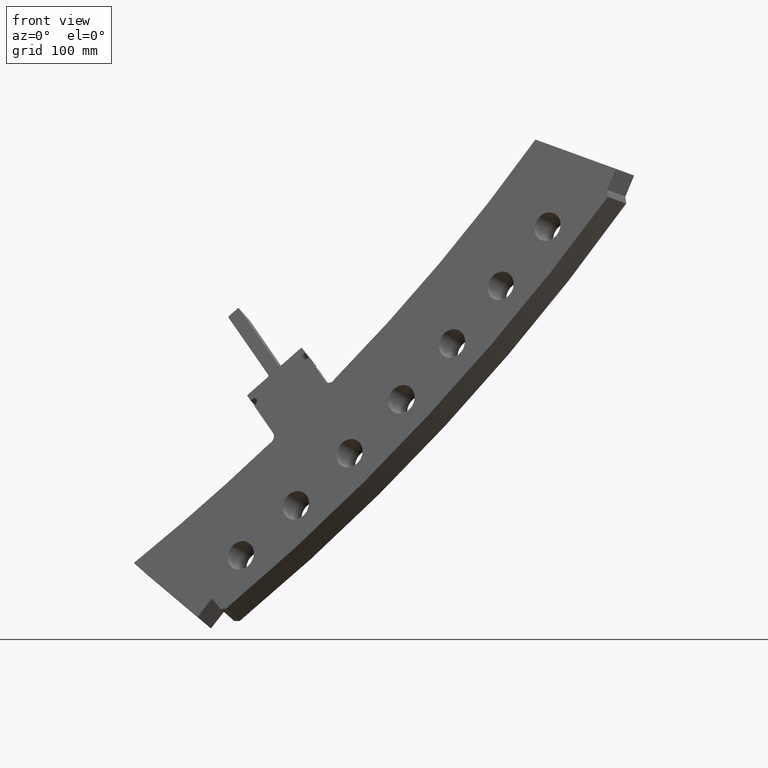
[diagram: clean part render]
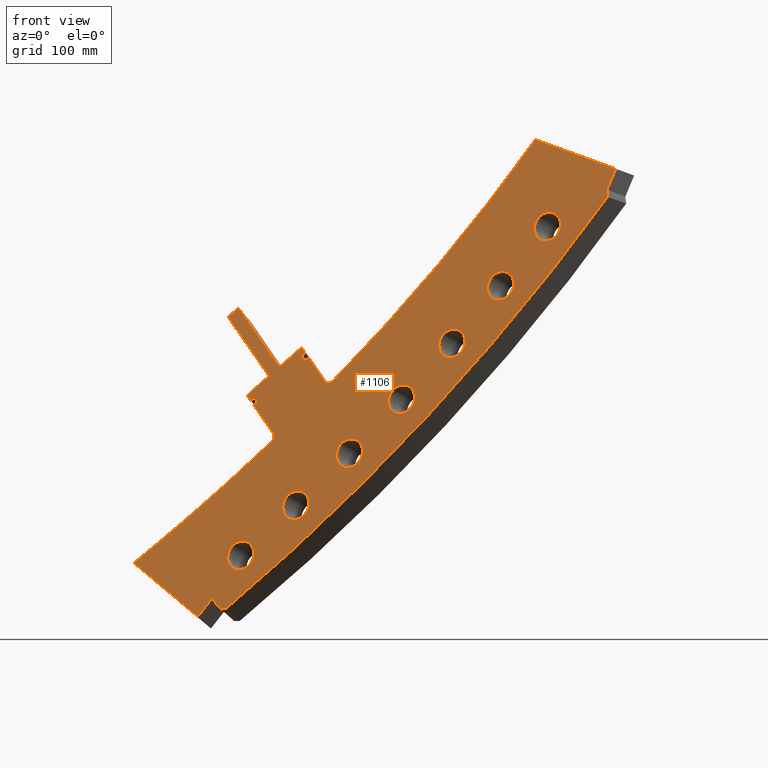
[diagram: same view with one face highlighted and labeled with its STEP entity id]
A machine part, front view. The second image highlights one B-rep face of the part: STEP entity #1106.
In plain terms, the highlighted planar face has unit normal (0.478, 0.8339, -0.276).
Its self-contained STEP definition (entity closure, byte-faithful):
#1=CARTESIAN_POINT('',(8.127558750762E1,-2.359378178252E1,-4.666729576118E1));
#2=DIRECTION('',(4.779914505684E-1,8.338858220672E-1,-2.759684926560E-1));
#3=DIRECTION('',(-7.019356772452E-1,1.737683261332E-1,-6.907176513187E-1));
#4=AXIS2_PLACEMENT_3D('',#1,#2,#3);
#6=CARTESIAN_POINT('',(8.127558750762E1,-2.359378178252E1,-4.666729576118E1));
#7=DIRECTION('',(4.779914505684E-1,8.338858220672E-1,-2.759684926560E-1));
#8=DIRECTION('',(7.019356772452E-1,-1.737683261332E-1,6.907176513187E-1));
#9=AXIS2_PLACEMENT_3D('',#6,#7,#8);
#11=CARTESIAN_POINT('',(7.843744196527E1,-2.294109803751E1,-4.961091289528E1));
#12=DIRECTION('',(4.779914505684E-1,8.338858220672E-1,-2.759684926560E-1));
#13=DIRECTION('',(-7.019356772452E-1,1.737683261332E-1,-6.907176513187E-1));
#14=AXIS2_PLACEMENT_3D('',#11,#12,#13);
#16=CARTESIAN_POINT('',(7.843744196527E1,-2.294109803751E1,-4.961091289528E1));
#17=DIRECTION('',(4.779914505684E-1,8.338858220672E-1,-2.759684926560E-1));
#18=DIRECTION('',(7.019356772452E-1,-1.737683261332E-1,6.907176513187E-1));
#19=AXIS2_PLACEMENT_3D('',#16,#17,#18);
#21=CARTESIAN_POINT('',(7.551388390553E1,-2.220462540024E1,-5.244928643458E1));
#22=DIRECTION('',(4.779914505684E-1,8.338858220672E-1,-2.759684926560E-1));
#23=DIRECTION('',(-7.019356772452E-1,1.737683261332E-1,-6.907176513187E-1));
#24=AXIS2_PLACEMENT_3D('',#21,#22,#23);
#26=CARTESIAN_POINT('',(7.551388390553E1,-2.220462540024E1,-5.244928643458E1));
#27=DIRECTION('',(4.779914505684E-1,8.338858220672E-1,-2.759684926560E-1));
#28=DIRECTION('',(7.019356772452E-1,-1.737683261332E-1,6.907176513187E-1));
#29=AXIS2_PLACEMENT_3D('',#26,#27,#28);
#31=CARTESIAN_POINT('',(7.250924293747E1,-2.138545454125E1,-5.517821292306E1));
#32=DIRECTION('',(4.779914505684E-1,8.338858220672E-1,-2.759684926560E-1));
#33=DIRECTION('',(-7.019356772452E-1,1.737683261332E-1,-6.907176513187E-1));
#34=AXIS2_PLACEMENT_3D('',#31,#32,#33);
#36=CARTESIAN_POINT('',(7.250924293747E1,-2.138545454125E1,-5.517821292306E1));
#37=DIRECTION('',(4.779914505684E-1,8.338858220672E-1,-2.759684926560E-1));
#38=DIRECTION('',(7.019356772452E-1,-1.737683261332E-1,6.907176513187E-1));
#39=AXIS2_PLACEMENT_3D('',#36,#37,#38);
#41=CARTESIAN_POINT('',(8.402411741419E1,-2.416171005093E1,-4.362279434760E1));
#42=DIRECTION('',(4.779914505684E-1,8.338858220672E-1,-2.759684926560E-1));
#43=DIRECTION('',(-7.019356772452E-1,1.737683261332E-1,-6.907176513187E-1));
#44=AXIS2_PLACEMENT_3D('',#41,#42,#43);
#46=CARTESIAN_POINT('',(8.402411741419E1,-2.416171005093E1,-4.362279434760E1));
#47=DIRECTION('',(4.779914505684E-1,8.338858220672E-1,-2.759684926560E-1));
#48=DIRECTION('',(7.019356772452E-1,-1.737683261332E-1,6.907176513187E-1));
#49=AXIS2_PLACEMENT_3D('',#46,#47,#48);
#51=CARTESIAN_POINT('',(8.667896128183E1,-2.464404177603E1,-4.048191737323E1));
#52=DIRECTION('',(4.779914505684E-1,8.338858220672E-1,-2.759684926560E-1));
#53=DIRECTION('',(-7.019356772452E-1,1.737683261332E-1,-6.907176513187E-1));
#54=AXIS2_PLACEMENT_3D('',#51,#52,#53);
#56=CARTESIAN_POINT('',(8.667896128183E1,-2.464404177603E1,-4.048191737323E1));
#57=DIRECTION('',(4.779914505684E-1,8.338858220672E-1,-2.759684926560E-1));
#58=DIRECTION('',(7.019356772452E-1,-1.737683261332E-1,6.907176513187E-1));
#59=AXIS2_PLACEMENT_3D('',#56,#57,#58);
#61=CARTESIAN_POINT('',(8.923618745062E1,-2.504006265430E1,-3.724931628303E1));
#62=DIRECTION('',(4.779914505684E-1,8.338858220672E-1,-2.759684926560E-1));
#63=DIRECTION('',(-7.019356772452E-1,1.737683261332E-1,-6.907176513187E-1));
#64=AXIS2_PLACEMENT_3D('',#61,#62,#63);
#66=CARTESIAN_POINT('',(8.923618745062E1,-2.504006265430E1,-3.724931628303E1));
#67=DIRECTION('',(4.779914505684E-1,8.338858220672E-1,-2.759684926560E-1));
#68=DIRECTION('',(7.019356772452E-1,-1.737683261332E-1,6.907176513187E-1));
#69=AXIS2_PLACEMENT_3D('',#66,#67,#68);
#71=CARTESIAN_POINT('',(7.426396497243E1,-2.018117767834E1,-4.850001747068E1));
#72=CARTESIAN_POINT('',(7.428116688443E1,-2.019926382544E1,-4.852487326020E1));
#73=CARTESIAN_POINT('',(7.430624649612E1,-2.023204191765E1,-4.858047868911E1));
#74=CARTESIAN_POINT('',(7.431985381070E1,-2.027313301015E1,-4.868107386631E1));
#75=CARTESIAN_POINT('',(7.430584599745E1,-2.030214373105E1,-4.879299694681E1));
#76=CARTESIAN_POINT('',(7.426421117853E1,-2.031394711324E1,-4.890077649896E1));
#77=CARTESIAN_POINT('',(7.419381269522E1,-2.030454052412E1,-4.899428663705E1));
#78=CARTESIAN_POINT('',(7.413189019313E1,-2.028463997730E1,-4.904140666379E1));
#79=CARTESIAN_POINT('',(7.409668651441E1,-2.027102156962E1,-4.906123088475E1));
#81=CARTESIAN_POINT('',(7.322662826487E1,-1.909071871240E1,-4.700172978686E1));
#82=CARTESIAN_POINT('',(7.333998205052E1,-1.920985426338E1,-4.716538363735E1));
#83=CARTESIAN_POINT('',(7.356795975812E1,-1.944947628392E1,-4.749457342839E1));
#84=CARTESIAN_POINT('',(7.391373803520E1,-1.981296243644E1,-4.799400322754E1));
#85=CARTESIAN_POINT('',(7.414679886133E1,-2.005798884215E1,-4.833071906968E1));
#86=CARTESIAN_POINT('',(7.426396497243E1,-2.018117767834E1,-4.850001747068E1));
#88=CARTESIAN_POINT('',(7.332671491990E1,-1.911902440292E1,-4.691390508201E1));
#89=CARTESIAN_POINT('',(7.331007460952E1,-1.911431846237E1,-4.692850714384E1));
#90=CARTESIAN_POINT('',(7.327675319055E1,-1.910489490735E1,-4.695774665734E1));
#91=CARTESIAN_POINT('',(7.324335017342E1,-1.909544800264E1,-4.698705694793E1));
#92=CARTESIAN_POINT('',(7.322662826487E1,-1.909071871240E1,-4.700172978686E1));
#94=CARTESIAN_POINT('',(7.314373635167E1,-1.892671666798E1,-4.664974267100E1));
#95=CARTESIAN_POINT('',(7.316191665020E1,-1.893185873867E1,-4.663379111298E1));
#96=CARTESIAN_POINT('',(7.320089902385E1,-1.894677658182E1,-4.661134846611E1));
#97=CARTESIAN_POINT('',(7.327089571046E1,-1.898333002909E1,-4.660056311769E1));
#98=CARTESIAN_POINT('',(7.333293832588E1,-1.902408211379E1,-4.661624152310E1));
#99=CARTESIAN_POINT('',(7.337844986463E1,-1.906226235772E1,-4.665278133812E1));
#100=CARTESIAN_POINT('',(7.340160525196E1,-1.909500679648E1,-4.671161793175E1));
#101=CARTESIAN_POINT('',(7.340039202589E1,-1.911924077189E1,-4.678694638678E1));
#102=CARTESIAN_POINT('',(7.337349854657E1,-1.912843197018E1,-4.686130003106E1));
#103=CARTESIAN_POINT('',(7.334468564249E1,-1.912410658890E1,-4.689813556832E1));
#104=CARTESIAN_POINT('',(7.332671491990E1,-1.911902440292E1,-4.691390508201E1));
#106=CARTESIAN_POINT('',(7.306621718274E1,-1.890479084907E1,-4.671775721244E1));
#107=CARTESIAN_POINT('',(7.307916175671E1,-1.890845222353E1,-4.670640001940E1));
#108=CARTESIAN_POINT('',(7.310502619190E1,-1.891576790084E1,-4.668370706905E1));
#109=CARTESIAN_POINT('',(7.313084120239E1,-1.892306943584E1,-4.666105699137E1));
#110=CARTESIAN_POINT('',(7.314373635167E1,-1.892671666798E1,-4.664974267100E1));
#112=CARTESIAN_POINT('',(7.302896235534E1,-1.888297858582E1,-4.671637499636E1));
#113=CARTESIAN_POINT('',(7.303517033241E1,-1.888661332189E1,-4.671660543899E1));
#114=CARTESIAN_POINT('',(7.304758744738E1,-1.889388343517E1,-4.671706625102E1));
#115=CARTESIAN_POINT('',(7.306000688401E1,-1.890115483073E1,-4.671752691642E1));
#116=CARTESIAN_POINT('',(7.306621718274E1,-1.890479084907E1,-4.671775721244E1));
#118=CARTESIAN_POINT('',(7.286258814938E1,-1.870813795394E1,-4.647623281433E1));
#119=CARTESIAN_POINT('',(7.289024448457E1,-1.873720065464E1,-4.651614853868E1));
#120=CARTESIAN_POINT('',(7.294562984907E1,-1.879540345925E1,-4.659608796453E1));
#121=CARTESIAN_POINT('',(7.300116061687E1,-1.885376107450E1,-4.667624333118E1));
#122=CARTESIAN_POINT('',(7.302896235534E1,-1.888297858582E1,-4.671637499636E1));
#124=CARTESIAN_POINT('',(7.287048476558E1,-1.869909736581E1,-4.643523779643E1));
#125=CARTESIAN_POINT('',(7.286916939144E1,-1.870060313326E1,-4.644206602417E1));
#126=CARTESIAN_POINT('',(7.286653791469E1,-1.870361566545E1,-4.645572675490E1));
#127=CARTESIAN_POINT('',(7.286390498072E1,-1.870663019206E1,-4.646939603611E1));
#128=CARTESIAN_POINT('',(7.286258814938E1,-1.870813795394E1,-4.647623281433E1));
#130=CARTESIAN_POINT('',(7.396782235400E1,-1.900942105620E1,-4.547228924593E1));
#131=CARTESIAN_POINT('',(7.384923316018E1,-1.897589525255E1,-4.557638782674E1));
#132=CARTESIAN_POINT('',(7.360983032252E1,-1.890820761664E1,-4.578651598003E1));
#133=CARTESIAN_POINT('',(7.324405167E1,-1.880476696027E1,-4.610749962235E1));
#134=CARTESIAN_POINT('',(7.299574890667E1,-1.873453295203E1,-4.632534860122E1));
#135=CARTESIAN_POINT('',(7.287048476558E1,-1.869909736581E1,-4.643523779643E1));
#137=CARTESIAN_POINT('',(7.399679862397E1,-1.897665077469E1,-4.532307988491E1));
#138=CARTESIAN_POINT('',(7.400360696534E1,-1.898380717230E1,-4.533291176648E1));
#139=CARTESIAN_POINT('',(7.401209553591E1,-1.899603175331E1,-4.535514778541E1));
#140=CARTESIAN_POINT('',(7.401160847569E1,-1.900996113227E1,-4.539808139034E1));
#141=CARTESIAN_POINT('',(7.399562704275E1,-1.901509373458E1,-4.544127107660E1));
#142=CARTESIAN_POINT('',(7.397850462813E1,-1.901244099262E1,-4.546291225683E1));
#143=CARTESIAN_POINT('',(7.396782235400E1,-1.900942105620E1,-4.547228924593E1));
#145=CARTESIAN_POINT('',(7.182785333719E1,-1.669804584982E1,-4.219461029477E1));
#146=CARTESIAN_POINT('',(7.206046464002E1,-1.694226685936E1,-4.252967109231E1));
#147=CARTESIAN_POINT('',(7.253126591042E1,-1.743667772503E1,-4.320816604364E1));
#148=CARTESIAN_POINT('',(7.325423423171E1,-1.819620900998E1,-4.425100137082E1));
#149=CARTESIAN_POINT('',(7.374740858372E1,-1.871451140917E1,-4.496293734740E1));
#150=CARTESIAN_POINT('',(7.399679862397E1,-1.897665077469E1,-4.532307988491E1));
#152=CARTESIAN_POINT('',(7.183584233481E1,-1.668903719362E1,-4.215355175533E1));
#153=CARTESIAN_POINT('',(7.183451163133E1,-1.669053747579E1,-4.216038995954E1));
#154=CARTESIAN_POINT('',(7.183184942844E1,-1.669353920076E1,-4.217407125368E1));
#155=CARTESIAN_POINT('',(7.182918563310E1,-1.669654324669E1,-4.218776231918E1));
#156=CARTESIAN_POINT('',(7.182785333719E1,-1.669804584982E1,-4.219461029477E1));
#158=CARTESIAN_POINT('',(7.235823644005E1,-1.683694989781E1,-4.169568206161E1));
#159=CARTESIAN_POINT('',(7.227242646040E1,-1.681265666243E1,-4.177090315621E1));
#160=CARTESIAN_POINT('',(7.209955089886E1,-1.676371141860E1,-4.192243601830E1));
#161=CARTESIAN_POINT('',(7.192416382809E1,-1.671404830424E1,-4.207614977387E1));
#162=CARTESIAN_POINT('',(7.183584233481E1,-1.668903719362E1,-4.215355175533E1));
#164=CARTESIAN_POINT('',(7.239566608505E1,-1.685881645134E1,-4.169692553204E1));
#165=CARTESIAN_POINT('',(7.238942722971E1,-1.685517173874E1,-4.169671842634E1));
#166=CARTESIAN_POINT('',(7.237695010019E1,-1.684788260054E1,-4.169630407554E1));
#167=CARTESIAN_POINT('',(7.236447413304E1,-1.684059403638E1,-4.169588944603E1));
#168=CARTESIAN_POINT('',(7.235823644005E1,-1.683694989781E1,-4.169568206161E1));
#170=CARTESIAN_POINT('',(7.456353184660E1,-1.913683966985E1,-4.482550718984E1));
#171=CARTESIAN_POINT('',(7.431462473358E1,-1.887514752704E1,-4.446587955743E1));
#172=CARTESIAN_POINT('',(7.382217510463E1,-1.835748475225E1,-4.375462105782E1));
#173=CARTESIAN_POINT('',(7.309956817461E1,-1.759814780116E1,-4.271174699546E1));
#174=CARTESIAN_POINT('',(7.262852198875E1,-1.710335585189E1,-4.203252474114E1));
#175=CARTESIAN_POINT('',(7.239566608505E1,-1.685881645134E1,-4.169692553204E1));
#177=CARTESIAN_POINT('',(7.469925760385E1,-1.921615563631E1,-4.483008998947E1));
#178=CARTESIAN_POINT('',(7.468825810116E1,-1.921304741575E1,-4.483974966897E1));
#179=CARTESIAN_POINT('',(7.466486171623E1,-1.920411983027E1,-4.485329717569E1));
#180=CARTESIAN_POINT('',(7.462378703606E1,-1.918273920354E1,-4.485983540202E1));
#181=CARTESIAN_POINT('',(7.458729766528E1,-1.915853174750E1,-4.484988989306E1));
#182=CARTESIAN_POINT('',(7.457029945898E1,-1.914395489836E1,-4.483528521663E1));
#183=CARTESIAN_POINT('',(7.456353184660E1,-1.913683966985E1,-4.482550718984E1));
#185=CARTESIAN_POINT('',(7.580278164771E1,-1.952787435437E1,-4.386064149764E1));
#186=CARTESIAN_POINT('',(7.568384401021E1,-1.949429020493E1,-4.396516729888E1));
#187=CARTESIAN_POINT('',(7.544351796902E1,-1.942642106050E1,-4.417634602867E1));
#188=CARTESIAN_POINT('',(7.507567679538E1,-1.932251499165E1,-4.449949573922E1));
#189=CARTESIAN_POINT('',(7.482554768584E1,-1.925184247054E1,-4.471918300119E1));
#190=CARTESIAN_POINT('',(7.469925760385E1,-1.921615563631E1,-4.483008998947E1));
#192=CARTESIAN_POINT('',(7.584021038857E1,-1.954971635622E1,-4.386181234698E1));
#193=CARTESIAN_POINT('',(7.583397454087E1,-1.954607739770E1,-4.386161741884E1));
#194=CARTESIAN_POINT('',(7.582150056970E1,-1.953879810556E1,-4.386122734919E1));
#195=CARTESIAN_POINT('',(7.580902204696E1,-1.953151606315E1,-4.386083685267E1));
#196=CARTESIAN_POINT('',(7.580278164771E1,-1.952787435437E1,-4.386064149764E1));
#198=CARTESIAN_POINT('',(7.600617019378E1,-1.972434216407E1,-4.410202316481E1));
#199=CARTESIAN_POINT('',(7.597845547924E1,-1.969517944726E1,-4.406190634068E1));
#200=CARTESIAN_POINT('',(7.592308080491E1,-1.963691243128E1,-4.398175437334E1));
#201=CARTESIAN_POINT('',(7.586781561689E1,-1.957876224418E1,-4.390176578851E1));
#202=CARTESIAN_POINT('',(7.584021038857E1,-1.954971635622E1,-4.386181234698E1));
#204=CARTESIAN_POINT('',(7.599803448479E1,-1.973331911294E1,-4.414324000668E1));
#205=CARTESIAN_POINT('',(7.599939133397E1,-1.973182164419E1,-4.413636501798E1));
#206=CARTESIAN_POINT('',(7.600210413450E1,-1.972882801721E1,-4.412262055562E1));
#207=CARTESIAN_POINT('',(7.600481513982E1,-1.972583701153E1,-4.410888712339E1));
#208=CARTESIAN_POINT('',(7.600617019378E1,-1.972434216407E1,-4.410202316481E1));
#210=CARTESIAN_POINT('',(7.591984328223E1,-1.971124300698E1,-4.421196442658E1));
#211=CARTESIAN_POINT('',(7.593290384990E1,-1.971493056742E1,-4.420048545199E1));
#212=CARTESIAN_POINT('',(7.595899628477E1,-1.972229747898E1,-4.417755240759E1));
#213=CARTESIAN_POINT('',(7.598503131840E1,-1.972964797153E1,-4.415466917224E1));
#214=CARTESIAN_POINT('',(7.599803448479E1,-1.973331911294E1,-4.414324000668E1));
#216=CARTESIAN_POINT('',(7.610240479733E1,-1.990333467212E1,-4.447619630309E1));
#217=CARTESIAN_POINT('',(7.608628992153E1,-1.989878535076E1,-4.449036153709E1));
#218=CARTESIAN_POINT('',(7.605169637525E1,-1.988594112801E1,-4.451146830933E1));
#219=CARTESIAN_POINT('',(7.599014110373E1,-1.985521885377E1,-4.452525258079E1));
#220=CARTESIAN_POINT('',(7.593184315615E1,-1.981926898533E1,-4.451759893510E1));
#221=CARTESIAN_POINT('',(7.588551781573E1,-1.978441160466E1,-4.449250926343E1));
#222=CARTESIAN_POINT('',(7.585469500094E1,-1.975288193535E1,-4.445062367662E1));
#223=CARTESIAN_POINT('',(7.584224547920E1,-1.972621972581E1,-4.439162247175E1));
#224=CARTESIAN_POINT('',(7.585014382567E1,-1.970788311239E1,-4.432253493262E1));
#225=CARTESIAN_POINT('',(7.587713343875E1,-1.970228813306E1,-4.425888136812E1));
#226=CARTESIAN_POINT('',(7.590377292945E1,-1.970670565465E1,-4.422608871091E1));
#227=CARTESIAN_POINT('',(7.591984328223E1,-1.971124300698E1,-4.421196442658E1));
#229=CARTESIAN_POINT('',(7.620335047534E1,-1.993183114175E1,-4.438746019840E1));
#230=CARTESIAN_POINT('',(7.618657358170E1,-1.992709528623E1,-4.440220843620E1));
#231=CARTESIAN_POINT('',(7.615297240807E1,-1.991761001877E1,-4.443174602432E1));
#232=CARTESIAN_POINT('',(7.611927646273E1,-1.990809763950E1,-4.446136583890E1));
#233=CARTESIAN_POINT('',(7.610240479733E1,-1.990333467212E1,-4.447619630309E1));
#235=CARTESIAN_POINT('',(7.707927071810E1,-2.085369455891E1,-4.565588922325E1));
#236=CARTESIAN_POINT('',(7.698096631477E1,-2.075022110437E1,-4.551349477099E1));
#237=CARTESIAN_POINT('',(7.678501119752E1,-2.054397043081E1,-4.522967743743E1));
#238=CARTESIAN_POINT('',(7.649303840671E1,-2.023668279598E1,-4.480686719901E1));
#239=CARTESIAN_POINT('',(7.629969564043E1,-2.003321639715E1,-4.452693830134E1));
#240=CARTESIAN_POINT('',(7.620335047534E1,-1.993183114175E1,-4.438746019840E1));
#242=CARTESIAN_POINT('',(7.763834362520E1,-2.113849743220E1,-4.554812695146E1));
#243=CARTESIAN_POINT('',(7.761678436981E1,-2.113871239995E1,-4.558611823884E1));
#244=CARTESIAN_POINT('',(7.756700214980E1,-2.113227747068E1,-4.565289933801E1));
#245=CARTESIAN_POINT('',(7.746927593848E1,-2.110210535153E1,-4.573099590229E1));
#246=CARTESIAN_POINT('',(7.735548398776E1,-2.104952033390E1,-4.576919475184E1));
#247=CARTESIAN_POINT('',(7.724131547896E1,-2.098315436278E1,-4.576640432005E1));
#248=CARTESIAN_POINT('',(7.714559226436E1,-2.091553784255E1,-4.572788695435E1));
#249=CARTESIAN_POINT('',(7.709843246169E1,-2.087386386706E1,-4.568364511099E1));
#250=CARTESIAN_POINT('',(7.707927071810E1,-2.085369455891E1,-4.565588922325E1));
#252=CARTESIAN_POINT('',(2.602018066017E1,2.898041905185E1,1.648943797964E1));
#253=DIRECTION('',(-4.779914505684E-1,-8.338858220672E-1,2.759684926560E-1));
#254=DIRECTION('',(5.433490838424E-1,-5.275675419374E-1,-6.530269992748E-1));
#255=AXIS2_PLACEMENT_3D('',#252,#253,#254);
#257=DIRECTION('',(7.872613042947E-1,-5.460572021249E-1,-2.864282995232E-1));
#258=VECTOR('',#257,5.570960509643E0);
#259=CARTESIAN_POINT('',(8.857770471982E1,-2.309129389212E1,-3.250130496847E1));
#260=LINE('',#259,#258);
#261=DIRECTION('',(-3.894295751228E-1,-8.042776296287E-2,-9.175379997387E-1));
#262=VECTOR('',#261,1.245047790247E0);
#263=CARTESIAN_POINT('',(9.296350635682E1,-2.613335700117E1,-3.409698571396E1));
#264=LINE('',#263,#262);
#265=DIRECTION('',(1.027115952828E-1,-3.650926340621E-1,-9.252878993849E-1));
#266=VECTOR('',#265,4.190047732425E-1);
#267=CARTESIAN_POINT('',(9.247864792485E1,-2.623349340972E1,-3.523936437300E1));
#268=LINE('',#267,#266);
#269=CARTESIAN_POINT('',(2.058371674080E1,3.385014392128E1,2.178790968969E1));
#270=DIRECTION('',(4.779914505684E-1,8.338858220672E-1,-2.759684926560E-1));
#271=DIRECTION('',(6.539815257522E-1,-5.476055717032E-1,-5.219543100832E-1));
#272=AXIS2_PLACEMENT_3D('',#269,#270,#271);
#274=DIRECTION('',(-8.723175326749E-1,4.874657680870E-1,-3.793741070928E-2));
#275=VECTOR('',#274,3.373796081569E-1);
#276=CARTESIAN_POINT('',(7.170366042272E1,-2.188665835778E1,-5.808799549868E1));
#277=LINE('',#276,#275);
#278=DIRECTION('',(-5.478568091090E-1,5.286183536179E-1,6.483945966240E-1));
#279=VECTOR('',#278,8.753570700006E-1);
#280=CARTESIAN_POINT('',(7.140935827536E1,-2.172219734795E1,-5.810079480744E1));
#281=LINE('',#280,#279);
#282=DIRECTION('',(-6.049124475003E-1,8.470999172234E-2,-7.917734197115E-1));
#283=VECTOR('',#282,1.257324142773E0);
#284=CARTESIAN_POINT('',(7.092978794416E1,-2.125946753478E1,-5.753321801314E1));
#285=LINE('',#284,#283);
#286=DIRECTION('',(-6.412999194699E-1,5.460055444919E-1,5.390847416428E-1));
#287=VECTOR('',#286,5.443771119362E0);
#288=CARTESIAN_POINT('',(7.016921691965E1,-2.115295961706E1,-5.852873384935E1));
#289=LINE('',#288,#287);
#290=CARTESIAN_POINT('',(1.741432926344E1,3.700090175484E1,2.581892119302E1));
#291=DIRECTION('',(-4.779914505684E-1,-8.338858220672E-1,2.759684926560E-1));
#292=DIRECTION('',(4.478527061432E-1,-5.016502923434E-1,-7.401181917721E-1));
#293=AXIS2_PLACEMENT_3D('',#290,#291,#292);
#843=CARTESIAN_POINT('',(7.016921691965E1,-2.115295961706E1,-5.852873384935E1));
#844=CARTESIAN_POINT('',(6.667812693919E1,-1.818063040294E1,-5.559407990190E1));
#845=VERTEX_POINT('',#843);
#846=VERTEX_POINT('',#844);
#847=CARTESIAN_POINT('',(8.857770471982E1,-2.309129389212E1,-3.250130496847E1));
#848=CARTESIAN_POINT('',(9.296350635682E1,-2.613335700117E1,-3.409698571396E1));
#849=VERTEX_POINT('',#847);
#850=VERTEX_POINT('',#848);
#859=CARTESIAN_POINT('',(8.070526476986E1,-2.345259501754E1,-4.722850385288E1));
#860=CARTESIAN_POINT('',(8.184591024538E1,-2.373496854751E1,-4.610608766949E1));
#861=VERTEX_POINT('',#859);
#862=VERTEX_POINT('',#860);
#863=CARTESIAN_POINT('',(7.786711922751E1,-2.279991127253E1,-5.017212098698E1));
#864=CARTESIAN_POINT('',(7.900776470303E1,-2.308228480249E1,-4.904970480358E1));
#865=VERTEX_POINT('',#863);
#866=VERTEX_POINT('',#864);
#867=CARTESIAN_POINT('',(7.494356116777E1,-2.206343863526E1,-5.301049452628E1));
#868=CARTESIAN_POINT('',(7.608420664330E1,-2.234581216523E1,-5.188807834289E1));
#869=VERTEX_POINT('',#867);
#870=VERTEX_POINT('',#868);
#871=CARTESIAN_POINT('',(7.193892019971E1,-2.124426777626E1,-5.573942101476E1));
#872=CARTESIAN_POINT('',(7.307956567523E1,-2.152664130623E1,-5.461700483136E1));
#873=VERTEX_POINT('',#871);
#874=VERTEX_POINT('',#872);
#875=CARTESIAN_POINT('',(8.345379467643E1,-2.402052328595E1,-4.418400243930E1));
#876=CARTESIAN_POINT('',(8.459444015196E1,-2.430289681592E1,-4.306158625590E1));
#877=VERTEX_POINT('',#875);
#878=VERTEX_POINT('',#876);
#879=CARTESIAN_POINT('',(8.610863854407E1,-2.450285501105E1,-4.104312546493E1));
#880=CARTESIAN_POINT('',(8.724928401960E1,-2.478522854101E1,-3.992070928153E1));
#881=VERTEX_POINT('',#879);
#882=VERTEX_POINT('',#880);
#883=CARTESIAN_POINT('',(8.866586471286E1,-2.489887588931E1,-3.781052437472E1));
#884=CARTESIAN_POINT('',(8.980651018838E1,-2.518124941928E1,-3.668810819133E1));
#885=VERTEX_POINT('',#883);
#886=VERTEX_POINT('',#884);
#915=CARTESIAN_POINT('',(9.252168457354E1,-2.638646896607E1,-3.562706441946E1));
#916=CARTESIAN_POINT('',(7.170366042272E1,-2.188665835778E1,-5.808799549868E1));
#917=VERTEX_POINT('',#915);
#918=VERTEX_POINT('',#916);
#923=CARTESIAN_POINT('',(9.247864792485E1,-2.623349340972E1,-3.523936437300E1));
#924=VERTEX_POINT('',#923);
#927=CARTESIAN_POINT('',(7.092978794416E1,-2.125946753478E1,-5.753321801314E1));
#928=VERTEX_POINT('',#927);
#931=CARTESIAN_POINT('',(7.140935827536E1,-2.172219734795E1,-5.810079480744E1));
#932=VERTEX_POINT('',#931);
#935=VERTEX_POINT('',#71);
#936=VERTEX_POINT('',#79);
#937=VERTEX_POINT('',#81);
#938=VERTEX_POINT('',#88);
#939=VERTEX_POINT('',#94);
#940=VERTEX_POINT('',#106);
#941=VERTEX_POINT('',#112);
#942=VERTEX_POINT('',#118);
#943=VERTEX_POINT('',#124);
#944=VERTEX_POINT('',#130);
#945=VERTEX_POINT('',#137);
#946=VERTEX_POINT('',#145);
#947=VERTEX_POINT('',#152);
#948=VERTEX_POINT('',#158);
#949=VERTEX_POINT('',#164);
#950=VERTEX_POINT('',#170);
#951=VERTEX_POINT('',#177);
#952=VERTEX_POINT('',#185);
#953=VERTEX_POINT('',#192);
#954=VERTEX_POINT('',#198);
#955=VERTEX_POINT('',#204);
#956=VERTEX_POINT('',#210);
#957=VERTEX_POINT('',#216);
#958=VERTEX_POINT('',#229);
#959=VERTEX_POINT('',#235);
#960=VERTEX_POINT('',#242);
#987=CARTESIAN_POINT('',(8.127558750762E1,-2.359378178252E1,-4.666729576118E1));
#988=DIRECTION('',(4.779914505684E-1,8.338858220672E-1,-2.759684926560E-1));
#989=DIRECTION('',(-7.019356772452E-1,1.737683261332E-1,-6.907176513187E-1));
#990=AXIS2_PLACEMENT_3D('',#987,#988,#989);
#991=PLANE('',#990);
#993=ORIENTED_EDGE('',*,*,#992,.F.);
#995=ORIENTED_EDGE('',*,*,#994,.F.);
#997=ORIENTED_EDGE('',*,*,#996,.F.);
#999=ORIENTED_EDGE('',*,*,#998,.F.);
#1001=ORIENTED_EDGE('',*,*,#1000,.F.);
#1003=ORIENTED_EDGE('',*,*,#1002,.F.);
#1005=ORIENTED_EDGE('',*,*,#1004,.F.);
#1007=ORIENTED_EDGE('',*,*,#1006,.F.);
#1009=ORIENTED_EDGE('',*,*,#1008,.F.);
#1011=ORIENTED_EDGE('',*,*,#1010,.F.);
#1013=ORIENTED_EDGE('',*,*,#1012,.F.);
#1015=ORIENTED_EDGE('',*,*,#1014,.F.);
#1017=ORIENTED_EDGE('',*,*,#1016,.F.);
#1019=ORIENTED_EDGE('',*,*,#1018,.F.);
#1021=ORIENTED_EDGE('',*,*,#1020,.F.);
#1023=ORIENTED_EDGE('',*,*,#1022,.F.);
#1025=ORIENTED_EDGE('',*,*,#1024,.F.);
#1027=ORIENTED_EDGE('',*,*,#1026,.F.);
#1029=ORIENTED_EDGE('',*,*,#1028,.F.);
#1031=ORIENTED_EDGE('',*,*,#1030,.F.);
#1033=ORIENTED_EDGE('',*,*,#1032,.F.);
#1035=ORIENTED_EDGE('',*,*,#1034,.F.);
#1037=ORIENTED_EDGE('',*,*,#1036,.F.);
#1039=ORIENTED_EDGE('',*,*,#1038,.F.);
#1041=ORIENTED_EDGE('',*,*,#1040,.F.);
#1043=ORIENTED_EDGE('',*,*,#1042,.T.);
#1045=ORIENTED_EDGE('',*,*,#1044,.T.);
#1047=ORIENTED_EDGE('',*,*,#1046,.T.);
#1049=ORIENTED_EDGE('',*,*,#1048,.T.);
#1051=ORIENTED_EDGE('',*,*,#1050,.T.);
#1053=ORIENTED_EDGE('',*,*,#1052,.T.);
#1055=ORIENTED_EDGE('',*,*,#1054,.T.);
#1057=ORIENTED_EDGE('',*,*,#1056,.T.);
#1059=ORIENTED_EDGE('',*,*,#1058,.T.);
#1061=ORIENTED_EDGE('',*,*,#1060,.T.);
#1062=EDGE_LOOP('',(#993,#995,#997,#999,#1001,#1003,#1005,#1007,#1009,#1011,
#1013,#1015,#1017,#1019,#1021,#1023,#1025,#1027,#1029,#1031,#1033,#1035,#1037,
#1039,#1041,#1043,#1045,#1047,#1049,#1051,#1053,#1055,#1057,#1059,#1061));
#1063=FACE_OUTER_BOUND('',#1062,.F.);
#1065=ORIENTED_EDGE('',*,*,#1064,.F.);
#1067=ORIENTED_EDGE('',*,*,#1066,.F.);
#1068=EDGE_LOOP('',(#1065,#1067));
#1069=FACE_BOUND('',#1068,.F.);
#1071=ORIENTED_EDGE('',*,*,#1070,.F.);
#1073=ORIENTED_EDGE('',*,*,#1072,.F.);
#1074=EDGE_LOOP('',(#1071,#1073));
#1075=FACE_BOUND('',#1074,.F.);
#1077=ORIENTED_EDGE('',*,*,#1076,.F.);
#1079=ORIENTED_EDGE('',*,*,#1078,.F.);
#1080=EDGE_LOOP('',(#1077,#1079));
#1081=FACE_BOUND('',#1080,.F.);
#1083=ORIENTED_EDGE('',*,*,#1082,.F.);
#1085=ORIENTED_EDGE('',*,*,#1084,.F.);
#1086=EDGE_LOOP('',(#1083,#1085));
#1087=FACE_BOUND('',#1086,.F.);
#1089=ORIENTED_EDGE('',*,*,#1088,.F.);
#1091=ORIENTED_EDGE('',*,*,#1090,.F.);
#1092=EDGE_LOOP('',(#1089,#1091));
#1093=FACE_BOUND('',#1092,.F.);
#1095=ORIENTED_EDGE('',*,*,#1094,.F.);
#1097=ORIENTED_EDGE('',*,*,#1096,.F.);
#1098=EDGE_LOOP('',(#1095,#1097));
#1099=FACE_BOUND('',#1098,.F.);
#1101=ORIENTED_EDGE('',*,*,#1100,.F.);
#1103=ORIENTED_EDGE('',*,*,#1102,.F.);
#1104=EDGE_LOOP('',(#1101,#1103));
#1105=FACE_BOUND('',#1104,.F.);
#1106=ADVANCED_FACE('',(#1063,#1069,#1075,#1081,#1087,#1093,#1099,#1105),#991,
.F.);
#5=CIRCLE('',#4,8.125E-1);
#10=CIRCLE('',#9,8.125E-1);
#15=CIRCLE('',#14,8.125E-1);
#20=CIRCLE('',#19,8.125E-1);
#25=CIRCLE('',#24,8.125E-1);
#30=CIRCLE('',#29,8.125E-1);
#35=CIRCLE('',#34,8.125E-1);
#40=CIRCLE('',#39,8.125E-1);
#45=CIRCLE('',#44,8.125E-1);
#50=CIRCLE('',#49,8.125E-1);
#55=CIRCLE('',#54,8.125E-1);
#60=CIRCLE('',#59,8.125E-1);
#65=CIRCLE('',#64,8.125E-1);
#70=CIRCLE('',#69,8.125E-1);
#80=B_SPLINE_CURVE_WITH_KNOTS('',3,(#71,#72,#73,#74,#75,#76,#77,#78,#79),
.UNSPECIFIED.,.F.,.F.,(4,1,1,1,1,1,4),(0.E0,1.666666666667E-1,3.333333333333E-1,
5.E-1,6.666666666667E-1,8.333333333333E-1,1.E0),.UNSPECIFIED.);
#87=B_SPLINE_CURVE_WITH_KNOTS('',3,(#81,#82,#83,#84,#85,#86),.UNSPECIFIED.,.F.,
.F.,(4,1,1,4),(0.E0,3.333333333333E-1,6.666666666667E-1,1.E0),.UNSPECIFIED.);
#93=B_SPLINE_CURVE_WITH_KNOTS('',3,(#88,#89,#90,#91,#92),.UNSPECIFIED.,.F.,.F.,(
4,1,4),(0.E0,5.E-1,1.E0),.UNSPECIFIED.);
#105=B_SPLINE_CURVE_WITH_KNOTS('',3,(#94,#95,#96,#97,#98,#99,#100,#101,#102,
#103,#104),.UNSPECIFIED.,.F.,.F.,(4,1,1,1,1,1,1,1,4),(0.E0,1.25E-1,2.5E-1,
3.75E-1,5.E-1,6.25E-1,7.5E-1,8.75E-1,1.E0),.UNSPECIFIED.);
#111=B_SPLINE_CURVE_WITH_KNOTS('',3,(#106,#107,#108,#109,#110),.UNSPECIFIED.,
.F.,.F.,(4,1,4),(0.E0,5.E-1,1.E0),.UNSPECIFIED.);
#117=B_SPLINE_CURVE_WITH_KNOTS('',3,(#112,#113,#114,#115,#116),.UNSPECIFIED.,
.F.,.F.,(4,1,4),(0.E0,5.E-1,1.E0),.UNSPECIFIED.);
#123=B_SPLINE_CURVE_WITH_KNOTS('',3,(#118,#119,#120,#121,#122),.UNSPECIFIED.,
.F.,.F.,(4,1,4),(0.E0,5.E-1,1.E0),.UNSPECIFIED.);
#129=B_SPLINE_CURVE_WITH_KNOTS('',3,(#124,#125,#126,#127,#128),.UNSPECIFIED.,
.F.,.F.,(4,1,4),(0.E0,5.E-1,1.E0),.UNSPECIFIED.);
#136=B_SPLINE_CURVE_WITH_KNOTS('',3,(#130,#131,#132,#133,#134,#135),
.UNSPECIFIED.,.F.,.F.,(4,1,1,4),(0.E0,3.333333333333E-1,6.666666666667E-1,1.E0),
.UNSPECIFIED.);
#144=B_SPLINE_CURVE_WITH_KNOTS('',3,(#137,#138,#139,#140,#141,#142,#143),
.UNSPECIFIED.,.F.,.F.,(4,1,1,1,4),(0.E0,2.5E-1,5.E-1,7.5E-1,1.E0),
.UNSPECIFIED.);
#151=B_SPLINE_CURVE_WITH_KNOTS('',3,(#145,#146,#147,#148,#149,#150),
.UNSPECIFIED.,.F.,.F.,(4,1,1,4),(0.E0,3.333333333333E-1,6.666666666667E-1,1.E0),
.UNSPECIFIED.);
#157=B_SPLINE_CURVE_WITH_KNOTS('',3,(#152,#153,#154,#155,#156),.UNSPECIFIED.,
.F.,.F.,(4,1,4),(0.E0,5.E-1,1.E0),.UNSPECIFIED.);
#163=B_SPLINE_CURVE_WITH_KNOTS('',3,(#158,#159,#160,#161,#162),.UNSPECIFIED.,
.F.,.F.,(4,1,4),(0.E0,5.E-1,1.E0),.UNSPECIFIED.);
#169=B_SPLINE_CURVE_WITH_KNOTS('',3,(#164,#165,#166,#167,#168),.UNSPECIFIED.,
.F.,.F.,(4,1,4),(0.E0,5.E-1,1.E0),.UNSPECIFIED.);
#176=B_SPLINE_CURVE_WITH_KNOTS('',3,(#170,#171,#172,#173,#174,#175),
.UNSPECIFIED.,.F.,.F.,(4,1,1,4),(0.E0,3.333333333333E-1,6.666666666667E-1,1.E0),
.UNSPECIFIED.);
#184=B_SPLINE_CURVE_WITH_KNOTS('',3,(#177,#178,#179,#180,#181,#182,#183),
.UNSPECIFIED.,.F.,.F.,(4,1,1,1,4),(0.E0,2.5E-1,5.E-1,7.5E-1,1.E0),
.UNSPECIFIED.);
#191=B_SPLINE_CURVE_WITH_KNOTS('',3,(#185,#186,#187,#188,#189,#190),
.UNSPECIFIED.,.F.,.F.,(4,1,1,4),(0.E0,3.333333333333E-1,6.666666666667E-1,1.E0),
.UNSPECIFIED.);
#197=B_SPLINE_CURVE_WITH_KNOTS('',3,(#192,#193,#194,#195,#196),.UNSPECIFIED.,
.F.,.F.,(4,1,4),(0.E0,5.E-1,1.E0),.UNSPECIFIED.);
#203=B_SPLINE_CURVE_WITH_KNOTS('',3,(#198,#199,#200,#201,#202),.UNSPECIFIED.,
.F.,.F.,(4,1,4),(0.E0,5.E-1,1.E0),.UNSPECIFIED.);
#209=B_SPLINE_CURVE_WITH_KNOTS('',3,(#204,#205,#206,#207,#208),.UNSPECIFIED.,
.F.,.F.,(4,1,4),(0.E0,5.E-1,1.E0),.UNSPECIFIED.);
#215=B_SPLINE_CURVE_WITH_KNOTS('',3,(#210,#211,#212,#213,#214),.UNSPECIFIED.,
.F.,.F.,(4,1,4),(0.E0,5.E-1,1.E0),.UNSPECIFIED.);
#228=B_SPLINE_CURVE_WITH_KNOTS('',3,(#216,#217,#218,#219,#220,#221,#222,#223,
#224,#225,#226,#227),.UNSPECIFIED.,.F.,.F.,(4,1,1,1,1,1,1,1,1,4),(0.E0,
1.111111111111E-1,2.222222222222E-1,3.333333333333E-1,4.444444444444E-1,
5.555555555556E-1,6.666666666667E-1,7.777777777778E-1,8.888888888889E-1,1.E0),
.UNSPECIFIED.);
#234=B_SPLINE_CURVE_WITH_KNOTS('',3,(#229,#230,#231,#232,#233),.UNSPECIFIED.,
.F.,.F.,(4,1,4),(0.E0,5.E-1,1.E0),.UNSPECIFIED.);
#241=B_SPLINE_CURVE_WITH_KNOTS('',3,(#235,#236,#237,#238,#239,#240),
.UNSPECIFIED.,.F.,.F.,(4,1,1,4),(0.E0,3.333333333333E-1,6.666666666667E-1,1.E0),
.UNSPECIFIED.);
#251=B_SPLINE_CURVE_WITH_KNOTS('',3,(#242,#243,#244,#245,#246,#247,#248,#249,
#250),.UNSPECIFIED.,.F.,.F.,(4,1,1,1,1,1,4),(0.E0,1.666666666667E-1,
3.333333333333E-1,5.E-1,6.666666666667E-1,8.333333333333E-1,1.E0),
.UNSPECIFIED.);
#256=CIRCLE('',#255,9.5E1);
#273=CIRCLE('',#272,1.1E2);
#294=CIRCLE('',#293,1.1E2);
#992=EDGE_CURVE('',#935,#936,#80,.T.);
#994=EDGE_CURVE('',#937,#935,#87,.T.);
#996=EDGE_CURVE('',#938,#937,#93,.T.);
#998=EDGE_CURVE('',#939,#938,#105,.T.);
#1000=EDGE_CURVE('',#940,#939,#111,.T.);
#1002=EDGE_CURVE('',#941,#940,#117,.T.);
#1004=EDGE_CURVE('',#942,#941,#123,.T.);
#1006=EDGE_CURVE('',#943,#942,#129,.T.);
#1008=EDGE_CURVE('',#944,#943,#136,.T.);
#1010=EDGE_CURVE('',#945,#944,#144,.T.);
#1012=EDGE_CURVE('',#946,#945,#151,.T.);
#1014=EDGE_CURVE('',#947,#946,#157,.T.);
#1016=EDGE_CURVE('',#948,#947,#163,.T.);
#1018=EDGE_CURVE('',#949,#948,#169,.T.);
#1020=EDGE_CURVE('',#950,#949,#176,.T.);
#1022=EDGE_CURVE('',#951,#950,#184,.T.);
#1024=EDGE_CURVE('',#952,#951,#191,.T.);
#1026=EDGE_CURVE('',#953,#952,#197,.T.);
#1028=EDGE_CURVE('',#954,#953,#203,.T.);
#1030=EDGE_CURVE('',#955,#954,#209,.T.);
#1032=EDGE_CURVE('',#956,#955,#215,.T.);
#1034=EDGE_CURVE('',#957,#956,#228,.T.);
#1036=EDGE_CURVE('',#958,#957,#234,.T.);
#1038=EDGE_CURVE('',#959,#958,#241,.T.);
#1040=EDGE_CURVE('',#960,#959,#251,.T.);
#1042=EDGE_CURVE('',#960,#849,#256,.T.);
#1044=EDGE_CURVE('',#849,#850,#260,.T.);
#1046=EDGE_CURVE('',#850,#924,#264,.T.);
#1048=EDGE_CURVE('',#924,#917,#268,.T.);
#1050=EDGE_CURVE('',#917,#918,#273,.T.);
#1052=EDGE_CURVE('',#918,#932,#277,.T.);
#1054=EDGE_CURVE('',#932,#928,#281,.T.);
#1056=EDGE_CURVE('',#928,#845,#285,.T.);
#1058=EDGE_CURVE('',#845,#846,#289,.T.);
#1060=EDGE_CURVE('',#846,#936,#294,.T.);
#1064=EDGE_CURVE('',#861,#862,#5,.T.);
#1066=EDGE_CURVE('',#862,#861,#10,.T.);
#1070=EDGE_CURVE('',#865,#866,#15,.T.);
#1072=EDGE_CURVE('',#866,#865,#20,.T.);
#1076=EDGE_CURVE('',#869,#870,#25,.T.);
#1078=EDGE_CURVE('',#870,#869,#30,.T.);
#1082=EDGE_CURVE('',#873,#874,#35,.T.);
#1084=EDGE_CURVE('',#874,#873,#40,.T.);
#1088=EDGE_CURVE('',#877,#878,#45,.T.);
#1090=EDGE_CURVE('',#878,#877,#50,.T.);
#1094=EDGE_CURVE('',#881,#882,#55,.T.);
#1096=EDGE_CURVE('',#882,#881,#60,.T.);
#1100=EDGE_CURVE('',#885,#886,#65,.T.);
#1102=EDGE_CURVE('',#886,#885,#70,.T.);